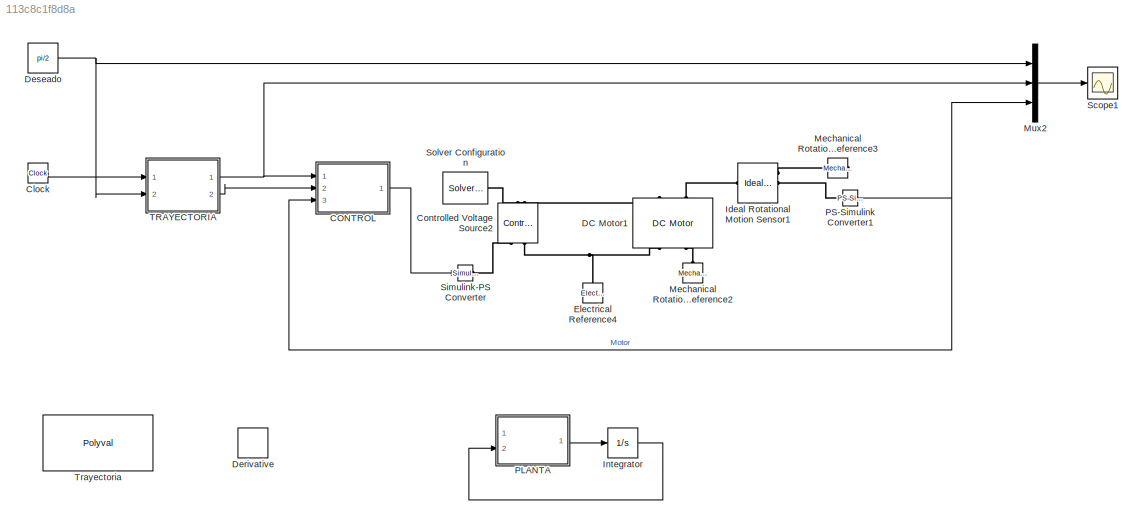
MODEL slx_113c8c1f8d8a
KIND model
CONFIG AbsTol = auto
CONFIG EnableMultiTasking = off
CONFIG FixedStep = auto
CONFIG MaxStep = auto
CONFIG MinStep = auto
CONFIG RelTol = 1e-3
CONFIG SampleTimeConstraint = Unconstrained
CONFIG SolverName = VariableStepAuto
CONFIG StartTime = 0.0
CONFIG StopTime = 10
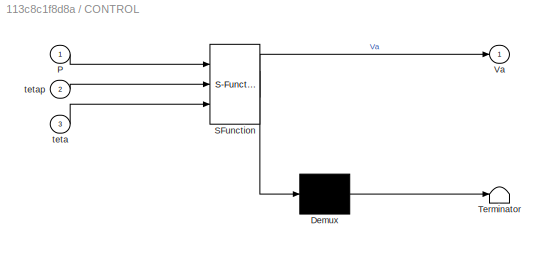
BLOCK [SubSystem] CONTROL
  ErrorFcn = Stateflow.Translate.translate
  PermitHierarchicalResolution = ExplicitOnly
  Ports = [3, 1]
  RequestExecContextInheritance = off
  SFBlockType = MATLAB Function
  TreatAsAtomicUnit = on
BLOCK [Demux] CONTROL/ Demux 
  Outputs = 1
  Ports = [1, 1]
BLOCK [S-Function] CONTROL/ SFunction 
  EnableBusSupport = on
  FunctionName = sf_sfun
  PortCounts = [3 2]
  Ports = [3, 2]
  SFcnIsStateOwnerBlock = off
  SFunctionDeploymentMode = off
  Tag = Stateflow S-Function 1
BLOCK [Terminator] CONTROL/ Terminator 
BLOCK [Inport] CONTROL/P
BLOCK [Outport] CONTROL/Va
BLOCK [Inport] CONTROL/teta
  Port = 3
BLOCK [Inport] CONTROL/tetap
  Port = 2
BLOCK [Clock] Clock
BLOCK [Reference] Controlled Voltage Source2  REF=fl_lib/Electrical/Electrical Sources/Controlled Voltage
Source
  NameLocation = right
  Ports = [0, 0, 0, 0, 0, 1, 2]
  SourceBlock = fl_lib/Electrical/Electrical Sources/Controlled Voltage\nSource
  SourceProductBaseCode = SS
  SourceType = Controlled Voltage\nSource
BLOCK [Reference] DC Motor1  REF=ee_lib/Electromechanical/Brushed Motors/DC Motor
  NameLocation = right
  Ports = [0, 0, 0, 0, 0, 2, 2]
  SourceBlock = ee_lib/Electromechanical/Brushed Motors/DC Motor
  SourceProductBaseCode = PS
  SourceType = DC Motor
BLOCK [Derivative] Derivative
  Commented = on
BLOCK [Constant] Deseado
  Value = pi/2
  VectorParams1D = off
BLOCK [Reference] Electrical Reference4  REF=fl_lib/Electrical/Electrical Elements/Electrical Reference
  NameLocation = right
  Ports = [0, 0, 0, 0, 0, 1]
  SourceBlock = fl_lib/Electrical/Electrical Elements/Electrical Reference
  SourceProductBaseCode = SS
  SourceType = Electrical Reference
BLOCK [Reference] Ideal Rotational Motion Sensor1  REF=fl_lib/Mechanical/Mechanical Sensors/Ideal Rotational
Motion Sensor
  Ports = [0, 0, 0, 0, 0, 1, 3]
  SourceBlock = fl_lib/Mechanical/Mechanical Sensors/Ideal Rotational\nMotion Sensor
  SourceProductBaseCode = SS
  SourceType = Ideal Rotational\nMotion Sensor
BLOCK [Integrator] Integrator
  Commented = on
  Ports = [1, 1]
BLOCK [Reference] Mechanical Rotational Reference2  REF=fl_lib/Mechanical/Rotational Elements/Mechanical
Rotational Reference
  NameLocation = right
  Ports = [0, 0, 0, 0, 0, 1]
  SourceBlock = fl_lib/Mechanical/Rotational Elements/Mechanical\nRotational Reference
  SourceProductBaseCode = SS
  SourceType = Mechanical\nRotational Reference
BLOCK [Reference] Mechanical Rotational Reference3  REF=fl_lib/Mechanical/Rotational Elements/Mechanical
Rotational Reference
  NameLocation = top
  Ports = [0, 0, 0, 0, 0, 1]
  SourceBlock = fl_lib/Mechanical/Rotational Elements/Mechanical\nRotational Reference
  SourceProductBaseCode = SS
  SourceType = Mechanical\nRotational Reference
BLOCK [Mux] Mux2
  DisplayOption = bar
  Inputs = 3
  Ports = [3, 1]
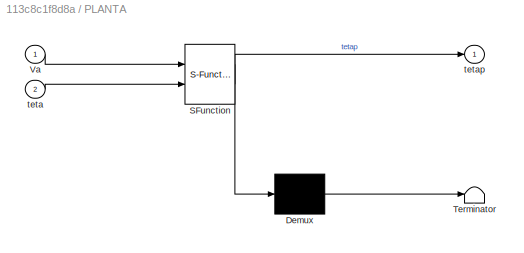
BLOCK [SubSystem] PLANTA
  Commented = on
  ErrorFcn = Stateflow.Translate.translate
  PermitHierarchicalResolution = ExplicitOnly
  Ports = [2, 1]
  RequestExecContextInheritance = off
  SFBlockType = MATLAB Function
  TreatAsAtomicUnit = on
BLOCK [Demux] PLANTA/ Demux 
  Outputs = 1
  Ports = [1, 1]
BLOCK [S-Function] PLANTA/ SFunction 
  EnableBusSupport = on
  FunctionName = sf_sfun
  PortCounts = [2 2]
  Ports = [2, 2]
  SFcnIsStateOwnerBlock = off
  SFunctionDeploymentMode = off
  Tag = Stateflow S-Function 2
BLOCK [Terminator] PLANTA/ Terminator 
BLOCK [Inport] PLANTA/Va
BLOCK [Inport] PLANTA/teta
  Port = 2
BLOCK [Outport] PLANTA/tetap
BLOCK [Reference] PS-Simulink Converter1  REF=nesl_utility/PS-Simulink
Converter
  Ports = [0, 1, 0, 0, 0, 1]
  SourceBlock = nesl_utility/PS-Simulink\nConverter
  SourceProductBaseCode = SS
  SourceType = PS-Simulink\nConverter
BLOCK [Scope] Scope1
  Floating = off
  NumInputPorts = 1
  Ports = [1]
  ScopeSpecificationString = Simulink.scopes.TimeScopeBlockCfg('CurrentConfiguration', extmgr.ConfigurationSet(extmgr.Configuration('Core','General UI',true),extmgr.Configuration('Core','Source UI',true),extmgr.Configuration('Sources','WiredSimulink',true,'DataLoggingVariableName','ScopeData1'),extmgr.Configuration('Visuals','Time Domain',true,'SerializedDisplays',{struct('MinYLimReal','-0.19663','MaxYLimReal','1.76718','YLab...<+1532ch>
BLOCK [Reference] Simulink-PS Converter  REF=nesl_utility/Simulink-PS
Converter
  Ports = [1, 0, 0, 0, 0, 0, 1]
  SourceBlock = nesl_utility/Simulink-PS\nConverter
  SourceProductBaseCode = SS
  SourceType = Simulink-PS\nConverter
BLOCK [Reference] Solver Configuration  REF=nesl_utility/Solver
Configuration
  Ports = [0, 0, 0, 0, 0, 0, 1]
  SourceBlock = nesl_utility/Solver\nConfiguration
  SourceProductBaseCode = SS
  SourceType = Solver\nConfiguration
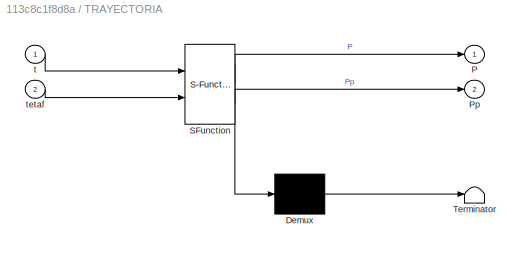
BLOCK [SubSystem] TRAYECTORIA
  ErrorFcn = Stateflow.Translate.translate
  PermitHierarchicalResolution = ExplicitOnly
  Ports = [2, 2]
  RequestExecContextInheritance = off
  SFBlockType = MATLAB Function
  TreatAsAtomicUnit = on
BLOCK [Demux] TRAYECTORIA/ Demux 
  Outputs = 1
  Ports = [1, 1]
BLOCK [S-Function] TRAYECTORIA/ SFunction 
  EnableBusSupport = on
  FunctionName = sf_sfun
  PortCounts = [2 3]
  Ports = [2, 3]
  SFcnIsStateOwnerBlock = off
  SFunctionDeploymentMode = off
  Tag = Stateflow S-Function 3
BLOCK [Terminator] TRAYECTORIA/ Terminator 
BLOCK [Outport] TRAYECTORIA/P
BLOCK [Outport] TRAYECTORIA/Pp
  Port = 2
BLOCK [Inport] TRAYECTORIA/t
BLOCK [Inport] TRAYECTORIA/tetaf
  Port = 2
BLOCK [Polyval] Trayectoria
  Coefs = [-2*40/1000 3*40/100 0 0]
  Commented = on
LINE CONTROL:1 -> Simulink-PS Converter:1
LINE Clock:1 -> TRAYECTORIA:1
NET Deseado:1 -> Mux2:1, TRAYECTORIA:2
LINE Integrator:1 -> PLANTA:2
LINE Mux2:1 -> Scope1:1
LINE PLANTA:1 -> Integrator:1
NET PS-Simulink Converter1:1 -> CONTROL:3, Mux2:3
NET TRAYECTORIA:1 -> CONTROL:1, Mux2:2
LINE TRAYECTORIA:2 -> CONTROL:2
PNET net1: Controlled Voltage Source2:LConn1 -- DC Motor1:LConn1 -- Solver Configuration:RConn1
PLINE Controlled Voltage Source2:RConn1 -- Simulink-PS Converter:RConn1
PNET net2: Controlled Voltage Source2:RConn2 -- DC Motor1:RConn1 -- Electrical Reference4:LConn1
PLINE DC Motor1:LConn2 -- Ideal Rotational Motion Sensor1:LConn1
PLINE DC Motor1:RConn2 -- Mechanical Rotational Reference2:LConn1
PLINE Ideal Rotational Motion Sensor1:RConn1 -- Mechanical Rotational Reference3:LConn1
PLINE Ideal Rotational Motion Sensor1:RConn2 -- PS-Simulink Converter1:LConn1
note: NET lines group one-source signal fan-out (src -> all destinations, sorted); 1:1 wires keep LINE; PNET lines group multi-terminal physical nets as a canonical sorted terminal list (undirected conserving connections); 2-terminal nets keep the pairwise PLINE form
CHART CONTROL states=1 transitions=1
  STATE_LABEL 'eML_blk_kernel()'
  STATE_LABEL 'SCRIPT:\nfunction Va = fcn(P, tetap, teta)\n% Parametros\nRa = 8.3;\nKe = 0.0879;\nKi = 0.0879;\nJ = 80.7e-6;\nB = 14.41e-6;\n\ntetad = P;\n\nKp = 25;\nKd = 2;\n\nVaux = Kp * (tetad - teta) - Kd * tetap;\nVa = J * Ra / Ki * (Vaux + Ki * Ke / (J * Ra) * teta + B / J * teta);'
CHART PLANTA states=1 transitions=1
  STATE_LABEL 'eML_blk_kernel()'
  STATE_LABEL 'SCRIPT:\n% function tetapp = fcn(Va, tetap)\nfunction tetap = fcn(Va, teta)\n% Parámetros\nRa = 8.3;\nKe = 0.0879;\nKi = 0.0879;\nJ = 80.7e-6;\nB = 14.41e-6;\nTL = 0.1*0;\n\n% Ra = 10.3;\n% Ke = 0.0113;\n% Ki = 0.0113;\n% J = 1.7e-6;\n% B = 3.41e-6;\n% TL = 0.1*0;\n\n\n% tetapp = Ki / (J * Ra) * Va - Ki * Ke / (J * Ra) * tetap - B / J * tetap - 1 / J * TL;\ntetap = (Ki / (J * Ra)) * Va - (Ki * Ke / (J * Ra)) * teta -...<+29ch>'
CHART TRAYECTORIA states=1 transitions=1
  STATE_LABEL 'eML_blk_kernel()'
  STATE_LABEL 'SCRIPT:\nfunction [P, Pp] = fcn(t, tetaf)\n% Parametros\nteta0 = 0;\ntetaf = tetaf;\ntetap0 = 0;\ntetapf = 0;\n% Tiempo de simulación\ntf = 10;\n\nP = teta0 + tetap0 * t + (3/tf^2) * (tetaf - teta0) * t^2 - (2/tf^3) * (tetaf - teta0) * t^3;\nPp = teta0 + (6/tf^2) * (tetaf - teta0) * t - (6 / tf^3) * (tetaf - teta0) * t^2;\n'
CHART  states=0 transitions=0
CHART  states=0 transitions=0
CHART  states=0 transitions=0
